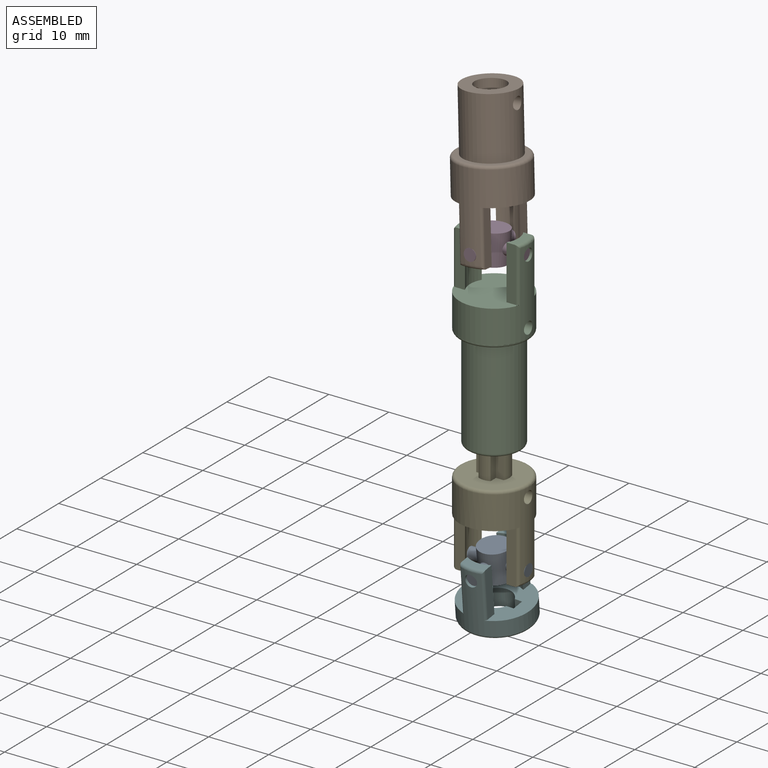
[diagram: assembled view]
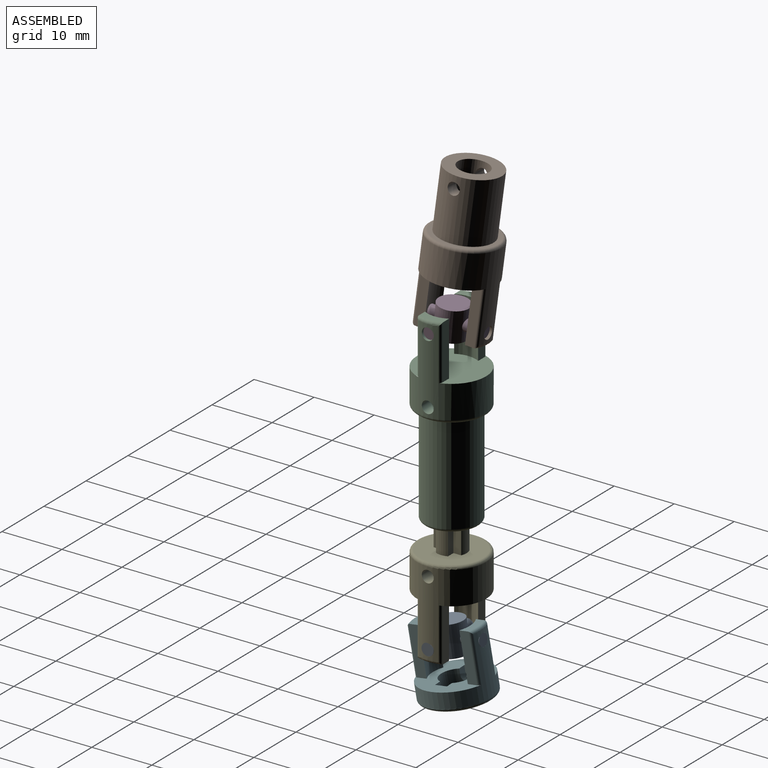
[diagram: assembled view, second angle]
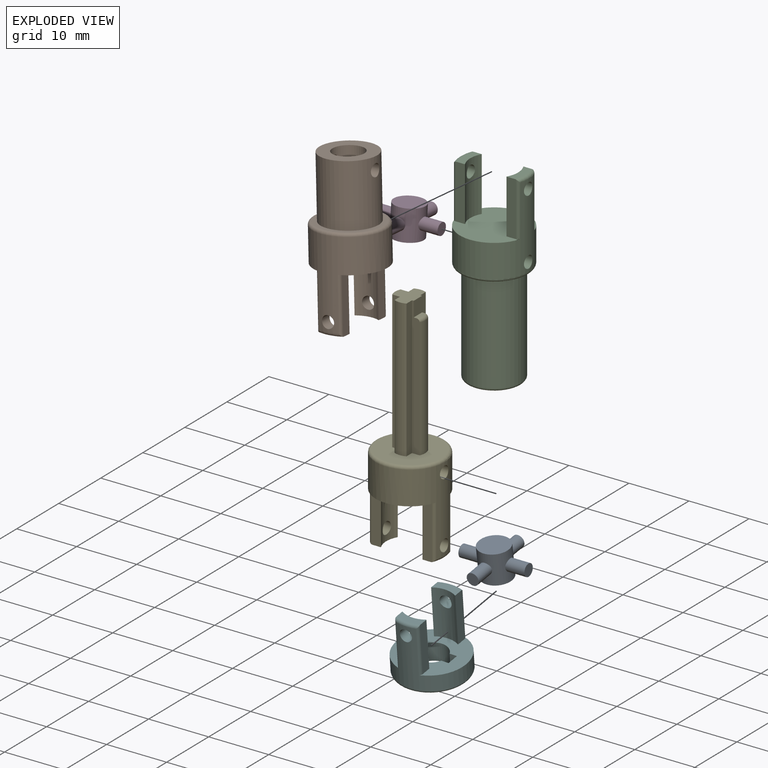
[diagram: exploded view]
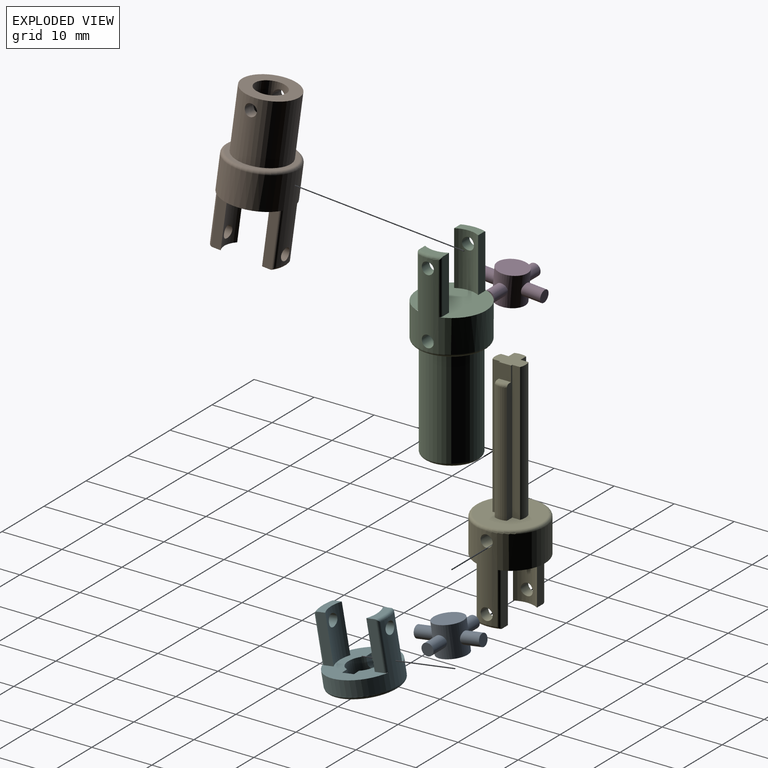
[diagram: exploded view, second angle]
ASSEMBLY  parts=6 mates=5
PART A: 11 faces, bbox 11x11x5 mm
  f0: cylinder r=2.5mm len=5mm, axis (0,0,-1), area 65.7mm2, adj f1,f2,f4,f5,f8,f9
  f1: plane 5x5mm, normal (0,0,1), area 19.6mm2, adj f0
  f2: plane 5x5mm, normal (0,0,-1), area 19.6mm2, adj f0
  f3: plane 2x2mm, normal (0,1,0), area 3.1mm2, adj f4
  f4: cylinder r=1mm len=3.21mm, axis (0,1,0), area 19.5mm2, adj f0,f3
  f5: cylinder r=1mm len=3.21mm, axis (0,1,0), area 19.5mm2, adj f0,f6
  f6: plane 2x2mm, normal (0,-1,0), area 3.1mm2, adj f5
  f7: plane 2x2mm, normal (1,0,0), area 3.1mm2, adj f8
  f8: cylinder r=1mm len=3.21mm, axis (-1,0,0), area 19.5mm2, adj f0,f7
  f9: cylinder r=1mm len=3.21mm, axis (-1,0,0), area 19.5mm2, adj f0,f10
  f10: plane 2x2mm, normal (-1,0,0), area 3.1mm2, adj f9
PART B: 29 faces, bbox 12.4x12.4x25 mm
  f0: cylinder r=2.5mm len=10mm, axis (0,0,1), area 150.7mm2, adj f22,f23,f24,f25
  f1: cylinder r=4.5mm len=10mm, axis (0,0,1), area 276.4mm2, adj f7,f22,f24,f25
  f2: cylinder r=5.75mm len=14mm, axis (0,0,-1), area 249mm2, adj f8,f9,f10,f15,f16,f17,f18,f19
  f3: cylinder r=4mm len=9mm, axis (0,0,1), area 34.5mm2, adj f6,f8,f10,f12,f14
  f4: cylinder r=4mm len=9mm, axis (0,0,1), area 34.5mm2, adj f5,f8,f9,f11,f13
  f5: plane 4x1.79mm, normal (0,0,1), area 5.2mm2, adj f4,f11,f13,f19
  f6: plane 4x1.79mm, normal (0,0,1), area 5.2mm2, adj f3,f12,f14,f17
  f7: plane 10.5x10.5mm, normal (0,0,-1), area 23mm2, adj f1,f21
  f8: plane 11.5x11.02mm, normal (0,0,1), area 89.5mm2, adj f2,f3,f4,f11,f12,f13,f14,f15
  f9: cylinder r=1mm len=2mm, axis (-1,0,0), area 11.1mm2, adj f2,f4
  f10: cylinder r=1mm len=2mm, axis (-1,0,0), area 11.1mm2, adj f2,f3
  f11: plane 9x1.57mm, normal (0,-1,0), area 14.1mm2, adj f4,f5,f8,f18,f19
  f12: plane 9x1.57mm, normal (0,-1,0), area 14.1mm2, adj f3,f6,f8,f15,f17
  f13: plane 9x1.57mm, normal (0,1,0), area 14.1mm2, adj f4,f5,f8,f19,f20
  f14: plane 9x1.57mm, normal (0,1,0), area 14.1mm2, adj f3,f6,f8,f16,f17
  f15: cylinder r=0.5mm len=8.97mm, axis (0,0,-1), area 5.6mm2, adj f2,f8,f12,f17
  f16: cylinder r=0.5mm len=8.97mm, axis (0,0,-1), area 5.6mm2, adj f2,f8,f14,f17
  f17: torus R=5.25mm, axis (0,0,1), area 3mm2, adj f2,f6,f12,f14,f15,f16
  f18: cylinder r=0.5mm len=8.97mm, axis (0,0,-1), area 5.6mm2, adj f2,f8,f11,f19
  f19: torus R=5.25mm, axis (0,0,1), area 3mm2, adj f2,f5,f11,f13,f18,f20
  f20: cylinder r=0.5mm len=8.97mm, axis (0,0,-1), area 5.6mm2, adj f2,f8,f13,f19
  f21: torus R=5.25mm, axis (0,0,1), area 27.5mm2, adj f2,f7
  f22: plane 9x9mm, normal (0,0,-1), area 44mm2, adj f0,f1
  f23: plane 5x5mm, normal (0,0,-1), area 19.6mm2, adj f0
  f24: cylinder r=1mm len=2.21mm, axis (0,1,0), area 12.9mm2, adj f0,f1
  f25: cylinder r=1mm len=2.21mm, axis (0,1,0), area 12.9mm2, adj f0,f1
  f26: cylinder r=1mm len=8.8mm, axis (0,1,0), area 55.3mm2, adj f27,f28
  f27: plane 2x2mm, normal (0,1,0), area 3.1mm2, adj f26
  f28: plane 2x2mm, normal (0,-1,0), area 3.1mm2, adj f26
PART C: 42 faces, bbox 12.4x12.4x32 mm
  f0: cylinder r=5.75mm len=14mm, axis (0,0,-1), area 242.7mm2, adj f6,f7,f8,f13,f14,f15,f16,f17
  f1: cylinder r=4mm len=9mm, axis (0,0,1), area 34.5mm2, adj f4,f6,f8,f10,f12
  f2: cylinder r=4mm len=9mm, axis (0,0,1), area 34.5mm2, adj f3,f6,f7,f9,f11
  f3: plane 4x1.79mm, normal (0,0,1), area 5.2mm2, adj f2,f9,f11,f17
  f4: plane 4x1.79mm, normal (0,0,1), area 5.2mm2, adj f1,f10,f12,f15
  f5: plane 10.5x10.5mm, normal (0,0,-1), area 23mm2, adj f19,f38
  f6: plane 11.5x11.02mm, normal (0,0,1), area 89.5mm2, adj f0,f1,f2,f9,f10,f11,f12,f13
  f7: cylinder r=1mm len=2mm, axis (-1,0,0), area 11.1mm2, adj f0,f2
  f8: cylinder r=1mm len=2mm, axis (-1,0,0), area 11.1mm2, adj f0,f1
  f9: plane 9x1.57mm, normal (0,-1,0), area 14.1mm2, adj f2,f3,f6,f16,f17
  f10: plane 9x1.57mm, normal (0,-1,0), area 14.1mm2, adj f1,f4,f6,f13,f15
  f11: plane 9x1.57mm, normal (0,1,0), area 14.1mm2, adj f2,f3,f6,f17,f18
  f12: plane 9x1.57mm, normal (0,1,0), area 14.1mm2, adj f1,f4,f6,f14,f15
  f13: cylinder r=0.5mm len=8.97mm, axis (0,0,-1), area 5.6mm2, adj f0,f6,f10,f15
  f14: cylinder r=0.5mm len=8.97mm, axis (0,0,-1), area 5.6mm2, adj f0,f6,f12,f15
  f15: torus R=5.25mm, axis (0,0,1), area 3mm2, adj f0,f4,f10,f12,f13,f14
  f16: cylinder r=0.5mm len=8.97mm, axis (0,0,-1), area 5.6mm2, adj f0,f6,f9,f17
  f17: torus R=5.25mm, axis (0,0,1), area 3mm2, adj f0,f3,f9,f11,f16,f18
  f18: cylinder r=0.5mm len=8.97mm, axis (0,0,-1), area 5.6mm2, adj f0,f6,f11,f17
  f19: torus R=5.25mm, axis (0,0,1), area 27.5mm2, adj f0,f5
  f20: cylinder r=1mm len=5.75mm, axis (1,0,0), area 31.9mm2, adj f0,f21,f25
  f21: cylinder r=1mm len=3.5mm, axis (0,1,0), area 18mm2, adj f20,f22,f23
  f22: plane 2x2mm, normal (0,1,0), area 3.1mm2, adj f21
  f23: cylinder r=1mm len=5.75mm, axis (1,0,0), area 31.9mm2, adj f0,f21,f25
  f24: plane 2x2mm, normal (0,-1,0), area 3.1mm2, adj f25
  f25: cylinder r=1mm len=5.3mm, axis (0,1,0), area 29.3mm2, adj f20,f23,f24
  f26: cylinder r=2.5mm len=17mm, axis (0,0,1), area 35mm2, adj f27,f37,f39,f40
  f27: plane 17x1.29mm, normal (0,1,0), area 22mm2, adj f26,f28,f39,f40
  f28: plane 17x1.29mm, normal (-1,0,0), area 22mm2, adj f27,f29,f39,f40
  f29: cylinder r=2.5mm len=17mm, axis (0,0,1), area 35mm2, adj f28,f30,f39,f40
  f30: plane 17x1.29mm, normal (1,0,0), area 22mm2, adj f29,f31,f39,f40
  f31: plane 17x1.29mm, normal (0,1,0), area 22mm2, adj f30,f32,f39,f40
  f32: cylinder r=2.5mm len=17mm, axis (0,0,1), area 35mm2, adj f31,f33,f39,f40
  f33: plane 17x1.29mm, normal (0,-1,0), area 22mm2, adj f32,f34,f39,f40
  f34: plane 17x1.29mm, normal (1,0,0), area 22mm2, adj f33,f35,f39,f40
  f35: cylinder r=2.5mm len=17mm, axis (0,0,1), area 35mm2, adj f34,f36,f39,f40
  f36: plane 17x1.29mm, normal (-1,0,0), area 22mm2, adj f35,f37,f39,f40
  f37: plane 17x1.29mm, normal (0,-1,0), area 22mm2, adj f26,f36,f39,f40
  f38: cylinder r=4.5mm len=16.5mm, axis (0,0,1), area 466.5mm2, adj f5,f41
  f39: plane 8x8mm, normal (0,0,-1), area 34.8mm2, adj f26,f27,f28,f29,f30,f31,f32,f33
  f40: plane 5x5mm, normal (0,0,-1), area 15.5mm2, adj f26,f27,f28,f29,f30,f31,f32,f33
  f41: torus R=4mm, axis (0,0,1), area 21.3mm2, adj f38,f39
PART D: same geometry as A
PART E: 42 faces, bbox 12.4x12.4x38 mm
  f0: plane 23x1.29mm, normal (0,-1,0), area 27.1mm2, adj f1,f8,f37,f38,f39,f40,f41
  f1: cylinder r=2.5mm len=20mm, axis (0,0,1), area 41.2mm2, adj f0,f2,f8,f41
  f2: plane 23x1.29mm, normal (0,1,0), area 27.1mm2, adj f1,f8,f29,f38,f39,f40,f41
  f3: cylinder r=5.75mm len=14mm, axis (0,0,-1), area 242.7mm2, adj f9,f10,f11,f16,f17,f18,f19,f20
  f4: cylinder r=4mm len=9mm, axis (0,0,1), area 34.5mm2, adj f7,f9,f11,f13,f15
  f5: cylinder r=4mm len=9mm, axis (0,0,1), area 34.5mm2, adj f6,f9,f10,f12,f14
  f6: plane 4x1.79mm, normal (0,0,1), area 5.2mm2, adj f5,f12,f14,f20
  f7: plane 4x1.79mm, normal (0,0,1), area 5.2mm2, adj f4,f13,f15,f18
  f8: plane 10.5x10.5mm, normal (0,0,-1), area 71.1mm2, adj f0,f1,f2,f22,f29,f30,f31,f32
  f9: plane 11.5x11.02mm, normal (0,0,1), area 89.5mm2, adj f3,f4,f5,f12,f13,f14,f15,f16
  f10: cylinder r=1mm len=2mm, axis (-1,0,0), area 11.1mm2, adj f3,f5
  f11: cylinder r=1mm len=2mm, axis (-1,0,0), area 11.1mm2, adj f3,f4
  f12: plane 9x1.57mm, normal (0,-1,0), area 14.1mm2, adj f5,f6,f9,f19,f20
  f13: plane 9x1.57mm, normal (0,-1,0), area 14.1mm2, adj f4,f7,f9,f16,f18
  f14: plane 9x1.57mm, normal (0,1,0), area 14.1mm2, adj f5,f6,f9,f20,f21
  f15: plane 9x1.57mm, normal (0,1,0), area 14.1mm2, adj f4,f7,f9,f17,f18
  f16: cylinder r=0.5mm len=8.97mm, axis (0,0,-1), area 5.6mm2, adj f3,f9,f13,f18
  f17: cylinder r=0.5mm len=8.97mm, axis (0,0,-1), area 5.6mm2, adj f3,f9,f15,f18
  f18: torus R=5.25mm, axis (0,0,1), area 3mm2, adj f3,f7,f13,f15,f16,f17
  f19: cylinder r=0.5mm len=8.97mm, axis (0,0,-1), area 5.6mm2, adj f3,f9,f12,f20
  f20: torus R=5.25mm, axis (0,0,1), area 3mm2, adj f3,f6,f12,f14,f19,f21
  f21: cylinder r=0.5mm len=8.97mm, axis (0,0,-1), area 5.6mm2, adj f3,f9,f14,f20
  f22: torus R=5.25mm, axis (0,0,1), area 27.5mm2, adj f3,f8
  f23: cylinder r=1mm len=5.75mm, axis (1,0,0), area 31.9mm2, adj f3,f24,f28
  f24: cylinder r=1mm len=3.5mm, axis (0,1,0), area 18mm2, adj f23,f25,f26
  f25: plane 2x2mm, normal (0,1,0), area 3.1mm2, adj f24
  f26: cylinder r=1mm len=5.75mm, axis (1,0,0), area 31.9mm2, adj f3,f24,f28
  f27: plane 2x2mm, normal (0,-1,0), area 3.1mm2, adj f28
  f28: cylinder r=1mm len=5.3mm, axis (0,1,0), area 29.3mm2, adj f23,f26,f27
  f29: plane 23x1.29mm, normal (1,0,0), area 29.7mm2, adj f2,f8,f30,f38
  f30: cylinder r=2.5mm len=23mm, axis (0,0,1), area 47.3mm2, adj f8,f29,f31,f38
  f31: plane 23x1.29mm, normal (-1,0,0), area 29.7mm2, adj f8,f30,f32,f38
  f32: plane 23x1.29mm, normal (0,1,0), area 29.7mm2, adj f8,f31,f33,f38
  f33: cylinder r=2.5mm len=23mm, axis (0,0,1), area 47.3mm2, adj f8,f32,f34,f38
  f34: plane 23x1.29mm, normal (0,-1,0), area 29.7mm2, adj f8,f33,f35,f38
  f35: plane 23x1.29mm, normal (-1,0,0), area 29.7mm2, adj f8,f34,f36,f38
  f36: cylinder r=2.5mm len=23mm, axis (0,0,1), area 47.3mm2, adj f8,f35,f37,f38
  f37: plane 23x1.29mm, normal (1,0,0), area 29.7mm2, adj f0,f8,f36,f38
  f38: plane 5x3.79mm, normal (0,0,-1), area 13.2mm2, adj f0,f2,f29,f30,f31,f32,f33,f34
  f39: plane 2.5x2mm, normal (1,0,0), area 5mm2, adj f0,f2,f38,f40
  f40: plane 2x0.71mm, normal (0,0,-1), area 1.2mm2, adj f0,f2,f39,f41
  f41: torus R=2mm, axis (0,0,-1), area 1.6mm2, adj f0,f1,f2,f40
PART F: 29 faces, bbox 12.4x12.4x11 mm
  f0: cylinder r=5.75mm len=11.5mm, axis (0,0,-1), area 134mm2, adj f5,f8,f9,f22,f23,f24,f25,f26
  f1: cylinder r=4mm len=8mm, axis (0,0,1), area 30.3mm2, adj f4,f5,f9,f19,f21
  f2: cylinder r=4mm len=8mm, axis (0,0,1), area 30.3mm2, adj f3,f5,f8,f18,f20
  f3: plane 4x1.79mm, normal (0,0,1), area 5.2mm2, adj f2,f18,f20,f23
  f4: plane 4x1.79mm, normal (0,0,1), area 5.2mm2, adj f1,f19,f21,f26
  f5: plane 11.5x11.02mm, normal (0,0,1), area 65.6mm2, adj f0,f1,f2,f6,f10,f11,f13,f14
  f6: cylinder r=2.5mm len=5mm, axis (0,0,-1), area 39.8mm2, adj f5,f7,f11,f12,f13,f14,f15,f16
  f7: plane 10.5x10.5mm, normal (0,0,-1), area 67mm2, adj f6,f28
  f8: cylinder r=1mm len=2mm, axis (-1,0,0), area 11.1mm2, adj f0,f2
  f9: cylinder r=1mm len=2mm, axis (-1,0,0), area 11.1mm2, adj f0,f1
  f10: plane 2x2mm, normal (0,1,0), area 3.6mm2, adj f5,f11,f12,f13
  f11: plane 1.21x1mm, normal (-1,0,0), area 1.2mm2, adj f5,f6,f10,f12
  f12: cylinder r=1mm len=2mm, axis (0,-1,0), area 3.5mm2, adj f6,f10,f11,f13
  f13: plane 1.21x1mm, normal (1,0,0), area 1.2mm2, adj f5,f6,f10,f12
  f14: plane 1.21x1mm, normal (1,0,0), area 1.2mm2, adj f5,f6,f16,f17
  f15: plane 1.21x1mm, normal (-1,0,0), area 1.2mm2, adj f5,f6,f16,f17
  f16: cylinder r=1mm len=2mm, axis (0,-1,0), area 3.5mm2, adj f6,f14,f15,f17
  f17: plane 2x2mm, normal (0,-1,0), area 3.6mm2, adj f5,f14,f15,f16
  f18: plane 8x1.57mm, normal (0,-1,0), area 12.5mm2, adj f2,f3,f5,f22,f23
  f19: plane 8x1.57mm, normal (0,-1,0), area 12.5mm2, adj f1,f4,f5,f25,f26
  f20: plane 8x1.57mm, normal (0,1,0), area 12.5mm2, adj f2,f3,f5,f23,f24
  f21: plane 8x1.57mm, normal (0,1,0), area 12.5mm2, adj f1,f4,f5,f26,f27
  f22: cylinder r=0.5mm len=7.97mm, axis (0,0,-1), area 5mm2, adj f0,f5,f18,f23
  f23: torus R=5.25mm, axis (0,0,1), area 3mm2, adj f0,f3,f18,f20,f22,f24
  f24: cylinder r=0.5mm len=7.97mm, axis (0,0,-1), area 5mm2, adj f0,f5,f20,f23
  f25: cylinder r=0.5mm len=7.97mm, axis (0,0,-1), area 5mm2, adj f0,f5,f19,f26
  f26: torus R=5.25mm, axis (0,0,1), area 3mm2, adj f0,f4,f19,f21,f25,f27
  f27: cylinder r=0.5mm len=7.97mm, axis (0,0,-1), area 5mm2, adj f0,f5,f21,f26
  f28: torus R=5.25mm, axis (0,0,1), area 27.5mm2, adj f0,f7
PLACE A rot(axis=(1,0,0),8.5deg) t=(-4.25,-3.84,-31.57)mm
PLACE B rot(axis=(0.71,0.71,0),173.3deg) t=(-5.8,-2.87,31.29)mm
PLACE C t=(-4.49,-4.21,5.41)mm fixed
PLACE D rot(axis=(1,0,0),175.2deg) t=(-4.73,-4,20.9)mm
PLACE E rot(axis=(1,0,0),180deg) t=(-4.49,-4.21,-16.09)mm
PLACE F rot(axis=(0.09,-0.05,0.99),90.5deg) t=(-4.64,-3.12,-38.02)mm
MATE revolute A.f8 <-> E.f10  axis (-1,0,0) through (-9.75,-4.21,-29.09)mm
MATE revolute D.f8 <-> C.f7  axis (1,0,0) through (0.77,-4.21,18.41)mm
MATE revolute F.f8 <-> A.f4  axis (0,-0.99,-0.15) through (-4.25,-10.14,-29.98)mm
MATE revolute B.f9 <-> D.f4  axis (0,-1,0.08) through (-4.73,-9.69,18.86)mm
MATE slider E.f36 <-> C.f32  axis (0,0,-1) through (-4.49,-4.21,6.91)mm
